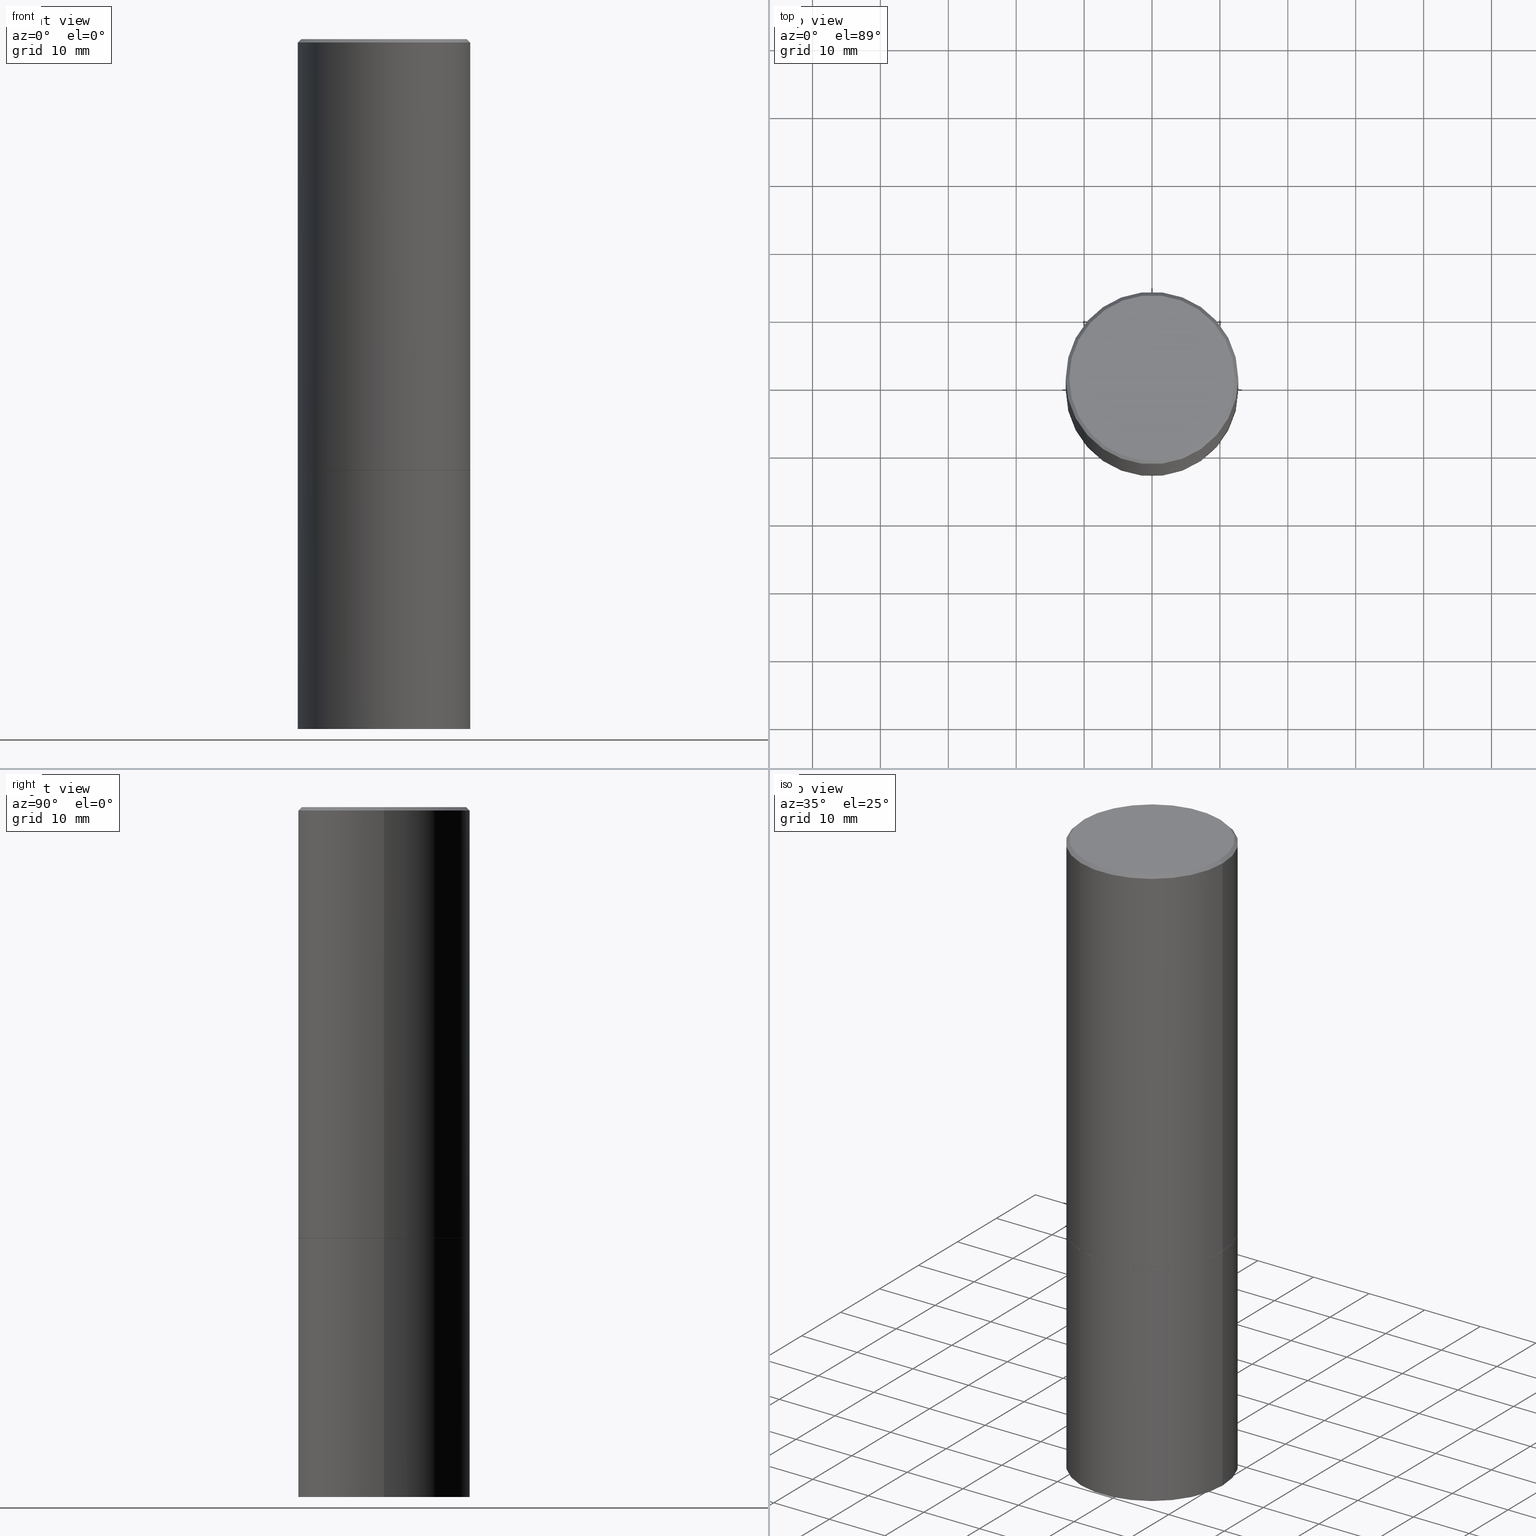
[diagram: canonical four-view strip — front | top / right | iso, engineering-drawing reading convention]
A machine part, canonical four-view strip (front | top / right | iso — engineering-drawing reading convention). The complete STEP part file that produces these views, byte-faithful:
ISO-10303-21;
HEADER;
FILE_DESCRIPTION (( 'STEP AP203' ),
    '1' );
FILE_NAME ('38523.STEP',
    '2024-02-27T23:28:09',
    ( '' ),
    ( '' ),
    'SwSTEP 2.0',
    'SolidWorks 2023',
    '' );
FILE_SCHEMA (( 'CONFIG_CONTROL_DESIGN' ));
ENDSEC;

DATA;
#1 = ORIENTED_EDGE ( 'NONE', *, *, #136, .F. ) ;
#2 = DIRECTION ( 'NONE',  ( 0.7071067811866199593, -2.468850131083015945E-15, 0.7071067811864750752 ) ) ;
#3 = VERTEX_POINT ( 'NONE', #291 ) ;
#4 = MANIFOLD_SOLID_BREP ( 'Body-Move/Copy2[2]', #10 ) ;
#5 = DIRECTION ( 'NONE',  ( -2.445468806185136877E-29, 3.491481338843145188E-15, 1.000000000000000000 ) ) ;
#6 = DIRECTION ( 'NONE',  ( -2.445468806185136597E-29, 3.491481338843145583E-15, 1.000000000000000000 ) ) ;
#7 = PLANE ( 'NONE',  #248 ) ;
#8 = UNCERTAINTY_MEASURE_WITH_UNIT (LENGTH_MEASURE( 1.000000000000000082E-05 ), #79, 'distance_accuracy_value', 'NONE');
#9 = EDGE_CURVE ( 'NONE', #335, #314, #13, .T. ) ;
#10 = CLOSED_SHELL ( 'NONE', ( #182, #326, #144, #77, #114, #61, #336, #315 ) ) ;
#11 = AXIS2_PLACEMENT_3D ( 'NONE', #63, #102, #156 ) ;
#12 = AXIS2_PLACEMENT_3D ( 'NONE', #40, #98, #277 ) ;
#13 = LINE ( 'NONE', #64, #80 ) ;
#14 = CARTESIAN_POINT ( 'NONE',  ( -3.131554243005659264E-46, 4.471029511141341874E-32, 1.280553747030123384E-17 ) ) ;
#15 = CARTESIAN_POINT ( 'NONE',  ( 6.113672015462842613E-29, -8.728703347107864943E-15, -2.500000000000000000 ) ) ;
#16 = DIRECTION ( 'NONE',  ( -2.445468806185136597E-29, 3.491481338843145583E-15, 1.000000000000000000 ) ) ;
#17 = CARTESIAN_POINT ( 'NONE',  ( 0.000000000000000000, 0.000000000000000000, 0.000000000000000000 ) ) ;
#18 = EDGE_CURVE ( 'NONE', #85, #51, #190, .T. ) ;
#19 = PERSON_AND_ORGANIZATION_ROLE ( 'classification_officer' ) ;
#20 = EDGE_CURVE ( 'NONE', #3, #163, #197, .T. ) ;
#21 = CONICAL_SURFACE ( 'NONE', #32, 0.4999999999999996114, 0.7853981633974471688 ) ;
#22 = EDGE_LOOP ( 'NONE', ( #229, #170, #237, #302 ) ) ;
#23 = CYLINDRICAL_SURFACE ( 'NONE', #356, 0.5000000000000000000 ) ;
#24 = EDGE_LOOP ( 'NONE', ( #262, #160, #287, #165 ) ) ;
#25 = ORIENTED_EDGE ( 'NONE', *, *, #152, .T. ) ;
#26 = APPROVAL ( #47, 'UNSPECIFIED' ) ;
#27 = ORIENTED_EDGE ( 'NONE', *, *, #286, .F. ) ;
#28 = CARTESIAN_POINT ( 'NONE',  ( 0.5000000000000000000, -1.221669320461215371E-14, -2.499000000000000110 ) ) ;
#29 = APPROVAL ( #238, 'UNSPECIFIED' ) ;
#30 = CARTESIAN_POINT ( 'NONE',  ( 6.113672015462842613E-29, -8.728703347107864943E-15, -2.500000000000000000 ) ) ;
#31 = CARTESIAN_POINT ( 'NONE',  ( -0.4999999999999996114, 3.421651712066267296E-15, -0.02000000000000009409 ) ) ;
#32 = AXIS2_PLACEMENT_3D ( 'NONE', #34, #317, #233 ) ;
#33 = AXIS2_PLACEMENT_3D ( 'NONE', #105, #56, #176 ) ;
#34 = CARTESIAN_POINT ( 'NONE',  ( 4.890937612370296805E-31, -6.982962677686323656E-17, -0.02000000000000009409 ) ) ;
#35 = COORDINATED_UNIVERSAL_TIME_OFFSET ( 5, 0, .BEHIND. ) ;
#36 = CARTESIAN_POINT ( 'NONE',  ( -0.4799999999999995381, 3.386736898677836041E-15, 1.280553747027767124E-17 ) ) ;
#37 = ORIENTED_EDGE ( 'NONE', *, *, #95, .T. ) ;
#38 = LINE ( 'NONE', #214, #59 ) ;
#39 = ORIENTED_EDGE ( 'NONE', *, *, #281, .F. ) ;
#40 = CARTESIAN_POINT ( 'NONE',  ( 4.890937612370296805E-31, -6.982962677686323656E-17, -0.02000000000000009409 ) ) ;
#41 = CIRCLE ( 'NONE', #273, 0.4999999999999996114 ) ;
#42 = DIRECTION ( 'NONE',  ( 1.000000000000000000, -6.982962677686266711E-15, 4.876176775795935793E-29 ) ) ;
#43 = PERSON_AND_ORGANIZATION_ROLE ( 'creator' ) ;
#44 = DIRECTION ( 'NONE',  ( 1.000000000000000000, -6.982962677686266711E-15, 0.000000000000000000 ) ) ;
#45 = EDGE_CURVE ( 'NONE', #139, #60, #90, .T. ) ;
#46 = AXIS2_PLACEMENT_3D ( 'NONE', #14, #242, #120 ) ;
#47 = APPROVAL_STATUS ( 'not_yet_approved' ) ;
#48 = CALENDAR_DATE ( 2024, 27, 2 ) ;
#49 = PLANE ( 'NONE',  #321 ) ;
#50 = CC_DESIGN_PERSON_AND_ORGANIZATION_ASSIGNMENT ( #297, #43, ( #330 ) ) ;
#51 = VERTEX_POINT ( 'NONE', #296 ) ;
#52 = CIRCLE ( 'NONE', #169, 0.5000000000000000000 ) ;
#53 = EDGE_LOOP ( 'NONE', ( #348, #178 ) ) ;
#54 = ADVANCED_FACE ( 'NONE', ( #243 ), #89, .T. ) ;
#55 = ORIENTED_EDGE ( 'NONE', *, *, #261, .T. ) ;
#56 = DIRECTION ( 'NONE',  ( 0.000000000000000000, 0.000000000000000000, 1.000000000000000000 ) ) ;
#57 = LINE ( 'NONE', #167, #288 ) ;
#58 = AXIS2_PLACEMENT_3D ( 'NONE', #110, #235, #341 ) ;
#59 = VECTOR ( 'NONE', #265, 39.37007874015748143 ) ;
#60 = VERTEX_POINT ( 'NONE', #28 ) ;
#61 = ADVANCED_FACE ( 'NONE', ( #148 ), #329, .T. ) ;
#62 = FACE_OUTER_BOUND ( 'NONE', #171, .T. ) ;
#63 = CARTESIAN_POINT ( 'NONE',  ( 0.000000000000000000, 0.000000000000000000, 0.000000000000000000 ) ) ;
#64 = CARTESIAN_POINT ( 'NONE',  ( -0.4989999999999999991, -5.183095095664965021E-15, -2.500000000000000000 ) ) ;
#65 = DIRECTION ( 'NONE',  ( 1.000000000000000000, -6.982962677686265133E-15, 0.000000000000000000 ) ) ;
#66 = CIRCLE ( 'NONE', #12, 0.4999999999999996114 ) ;
#67 = ORIENTED_EDGE ( 'NONE', *, *, #152, .F. ) ;
#68 = CARTESIAN_POINT ( 'NONE',  ( 0.4799999999999995381, -3.396558832296479338E-15, 1.280553747032483033E-17 ) ) ;
#69 = CARTESIAN_POINT ( 'NONE',  ( 3.351822085289404392E-15, 0.4799999999999995381, -1.669508273909557670E-15 ) ) ;
#70 = CALENDAR_DATE ( 2024, 27, 2 ) ;
#71 = CIRCLE ( 'NONE', #254, 0.5000000000000000000 ) ;
#72 = PERSON_AND_ORGANIZATION ( #166, #75 ) ;
#73 = DIRECTION ( 'NONE',  ( 1.000000000000000000, -6.982962677686265922E-15, 4.876176775795935793E-29 ) ) ;
#74 = VECTOR ( 'NONE', #5, 39.37007874015748143 ) ;
#75 = ORGANIZATION ( 'UNSPECIFIED', 'UNSPECIFIED', '' ) ;
#76 = SHAPE_DEFINITION_REPRESENTATION ( #192, #250 ) ;
#77 = ADVANCED_FACE ( 'NONE', ( #62 ), #21, .T. ) ;
#78 = CARTESIAN_POINT ( 'NONE',  ( -0.4989999999999999991, -5.177796641316743408E-15, -2.500000000000000000 ) ) ;
#79 =( CONVERSION_BASED_UNIT ( 'INCH', #332 ) LENGTH_UNIT ( ) NAMED_UNIT ( #200 ) );
#80 = VECTOR ( 'NONE', #202, 39.37007874015748143 ) ;
#81 = CC_DESIGN_APPROVAL ( #358, ( #330 ) ) ;
#82 = CC_DESIGN_PERSON_AND_ORGANIZATION_ASSIGNMENT ( #300, #179, ( #251 ) ) ;
#83 = CARTESIAN_POINT ( 'NONE',  ( -3.131554243005659264E-46, 4.471029511141341874E-32, 1.280553747030123384E-17 ) ) ;
#84 = VERTEX_POINT ( 'NONE', #68 ) ;
#85 = VERTEX_POINT ( 'NONE', #145 ) ;
#86 = ADVANCED_FACE ( 'NONE', ( #351 ), #7, .T. ) ;
#87 = ORIENTED_EDGE ( 'NONE', *, *, #107, .F. ) ;
#88 =( NAMED_UNIT ( * ) PLANE_ANGLE_UNIT ( ) SI_UNIT ( $, .RADIAN. ) );
#89 = CYLINDRICAL_SURFACE ( 'NONE', #124, 0.5000000000000000000 ) ;
#90 = LINE ( 'NONE', #211, #271 ) ;
#91 = FACE_OUTER_BOUND ( 'NONE', #109, .T. ) ;
#92 = DIRECTION ( 'NONE',  ( -1.000000000000000000, 6.982962677686265922E-15, -4.876176775795935793E-29 ) ) ;
#93 = LINE ( 'NONE', #270, #151 ) ;
#94 = LOCAL_TIME ( 18, 28, 9.000000000000000000, #35 ) ;
#95 = EDGE_CURVE ( 'NONE', #85, #163, #266, .T. ) ;
#96 = ORIENTED_EDGE ( 'NONE', *, *, #121, .T. ) ;
#97 = CARTESIAN_POINT ( 'NONE',  ( 0.5000000000000000000, -3.491481338843133355E-15, 2.438088387897967896E-29 ) ) ;
#98 = DIRECTION ( 'NONE',  ( -2.445468806185136597E-29, 3.491481338843145583E-15, 1.000000000000000000 ) ) ;
#99 = PERSON_AND_ORGANIZATION ( #166, #75 ) ;
#100 = CC_DESIGN_DATE_AND_TIME_ASSIGNMENT ( #234, #340, ( #330 ) ) ;
#101 = CYLINDRICAL_SURFACE ( 'NONE', #11, 0.4999999999999997780 ) ;
#102 = DIRECTION ( 'NONE',  ( -2.445468806185136597E-29, 3.491481338843145583E-15, 1.000000000000000000 ) ) ;
#103 = FACE_OUTER_BOUND ( 'NONE', #272, .T. ) ;
#104 = AXIS2_PLACEMENT_3D ( 'NONE', #15, #245, #352 ) ;
#105 = CARTESIAN_POINT ( 'NONE',  ( 0.000000000000000000, 0.000000000000000000, 0.000000000000000000 ) ) ;
#106 = ORIENTED_EDGE ( 'NONE', *, *, #228, .F. ) ;
#107 = EDGE_CURVE ( 'NONE', #51, #3, #205, .T. ) ;
#108 = ORIENTED_EDGE ( 'NONE', *, *, #20, .T. ) ;
#109 = EDGE_LOOP ( 'NONE', ( #137, #289, #119, #230 ) ) ;
#110 = CARTESIAN_POINT ( 'NONE',  ( 6.113672015462842613E-29, -8.728703347107864943E-15, -2.500000000000000000 ) ) ;
#111 = DIRECTION ( 'NONE',  ( 1.000000000000000000, -6.982962677686269077E-15, 0.000000000000000000 ) ) ;
#112 = DIRECTION ( 'NONE',  ( -2.445468806185136597E-29, 3.491481338843145583E-15, 1.000000000000000000 ) ) ;
#113 = DIRECTION ( 'NONE',  ( -2.445468806185136597E-29, 3.491481338843145583E-15, 1.000000000000000000 ) ) ;
#114 = ADVANCED_FACE ( 'NONE', ( #181 ), #188, .T. ) ;
#115 = APPLICATION_CONTEXT ( 'configuration controlled 3d designs of mechanical parts and assemblies' ) ;
#116 = CARTESIAN_POINT ( 'NONE',  ( -0.5000000000000000000, 3.552713678800500929E-15, -2.459467545127452891E-29 ) ) ;
#117 = DIRECTION ( 'NONE',  ( -2.445468806185136597E-29, 3.491481338843145583E-15, 1.000000000000000000 ) ) ;
#118 = LOCAL_TIME ( 18, 28, 9.000000000000000000, #325 ) ;
#119 = ORIENTED_EDGE ( 'NONE', *, *, #343, .F. ) ;
#120 = DIRECTION ( 'NONE',  ( 1.000000000000000000, -6.982962677686266711E-15, 4.876036955247133888E-29 ) ) ;
#121 = EDGE_CURVE ( 'NONE', #255, #259, #153, .T. ) ;
#122 = PERSON_AND_ORGANIZATION ( #166, #75 ) ;
#123 =( LENGTH_UNIT ( ) NAMED_UNIT ( * ) SI_UNIT ( $, .METRE. ) );
#124 = AXIS2_PLACEMENT_3D ( 'NONE', #318, #112, #339 ) ;
#125 = MANIFOLD_SOLID_BREP ( 'Body-Move/Copy2[1]', #309 ) ;
#126 = CIRCLE ( 'NONE', #263, 0.5000000000000000000 ) ;
#127 = DATE_AND_TIME ( #159, #347 ) ;
#128 = DATE_AND_TIME ( #186, #284 ) ;
#129 = CARTESIAN_POINT ( 'NONE',  ( 6.111226546656657010E-29, -8.725211865769021935E-15, -2.499000000000000110 ) ) ;
#130 = EDGE_LOOP ( 'NONE', ( #362, #313 ) ) ;
#131 = DIRECTION ( 'NONE',  ( -2.445468806185136597E-29, 3.491481338843145583E-15, 1.000000000000000000 ) ) ;
#132 = EDGE_LOOP ( 'NONE', ( #87, #55, #37, #322 ) ) ;
#133 = AXIS2_PLACEMENT_3D ( 'NONE', #30, #324, #264 ) ;
#134 = SECURITY_CLASSIFICATION ( '', '', #223 ) ;
#135 = EDGE_LOOP ( 'NONE', ( #39, #299, #199, #283 ) ) ;
#136 = EDGE_CURVE ( 'NONE', #335, #139, #338, .T. ) ;
#137 = ORIENTED_EDGE ( 'NONE', *, *, #286, .T. ) ;
#138 = ORIENTED_EDGE ( 'NONE', *, *, #161, .F. ) ;
#139 = VERTEX_POINT ( 'NONE', #278 ) ;
#140 = AXIS2_PLACEMENT_3D ( 'NONE', #201, #319, #175 ) ;
#141 = CALENDAR_DATE ( 2024, 27, 2 ) ;
#142 = DIRECTION ( 'NONE',  ( -2.445468806185136597E-29, 3.491481338843145583E-15, 1.000000000000000000 ) ) ;
#143 = DIRECTION ( 'NONE',  ( -2.445468806185136877E-29, 3.491481338843145188E-15, 1.000000000000000000 ) ) ;
#144 = ADVANCED_FACE ( 'NONE', ( #355 ), #295, .T. ) ;
#145 = CARTESIAN_POINT ( 'NONE',  ( 0.5000000000000000000, -1.745740669421571411E-14, -4.000000000000000000 ) ) ;
#146 = APPROVAL_DATE_TIME ( #184, #358 ) ;
#147 = CARTESIAN_POINT ( 'NONE',  ( 6.111226546656657010E-29, -8.725211865769021935E-15, -2.499000000000000110 ) ) ;
#148 = FACE_OUTER_BOUND ( 'NONE', #22, .T. ) ;
#149 = DIRECTION ( 'NONE',  ( 1.000000000000000000, -6.982962677686266711E-15, 0.000000000000000000 ) ) ;
#150 = ORIENTED_EDGE ( 'NONE', *, *, #210, .F. ) ;
#151 = VECTOR ( 'NONE', #180, 39.37007874015748143 ) ;
#152 = EDGE_CURVE ( 'NONE', #60, #366, #57, .T. ) ;
#153 = LINE ( 'NONE', #155, #304 ) ;
#154 = DIRECTION ( 'NONE',  ( 1.000000000000000000, -6.982962677686266711E-15, 4.876036955247133888E-29 ) ) ;
#155 = CARTESIAN_POINT ( 'NONE',  ( -0.4999999999999996114, 3.421651712066267296E-15, -0.02000000000000009409 ) ) ;
#156 = DIRECTION ( 'NONE',  ( 1.000000000000000000, -6.982962677686266711E-15, 4.876176775795935793E-29 ) ) ;
#157 = AXIS2_PLACEMENT_3D ( 'NONE', #69, #183, #303 ) ;
#158 = ADVANCED_FACE ( 'NONE', ( #285 ), #23, .T. ) ;
#159 = CALENDAR_DATE ( 2024, 27, 2 ) ;
#160 = ORIENTED_EDGE ( 'NONE', *, *, #107, .T. ) ;
#161 = EDGE_CURVE ( 'NONE', #255, #84, #226, .T. ) ;
#162 = VECTOR ( 'NONE', #240, 39.37007874015748143 ) ;
#163 = VERTEX_POINT ( 'NONE', #275 ) ;
#164 = ORIENTED_EDGE ( 'NONE', *, *, #220, .T. ) ;
#165 = ORIENTED_EDGE ( 'NONE', *, *, #95, .F. ) ;
#166 = PERSON ( 'UNSPECIFIED', 'UNSPECIFIED', 'UNSPECIFIED', ('UNSPECIFIED'), ('UNSPECIFIED'), ('UNSPECIFIED') ) ;
#167 = CARTESIAN_POINT ( 'NONE',  ( 0.4999999999999997780, -3.491481338843131778E-15, 2.438088387897966775E-29 ) ) ;
#168 = AXIS2_PLACEMENT_3D ( 'NONE', #17, #249, #42 ) ;
#169 = AXIS2_PLACEMENT_3D ( 'NONE', #147, #16, #65 ) ;
#170 = ORIENTED_EDGE ( 'NONE', *, *, #136, .T. ) ;
#171 = EDGE_LOOP ( 'NONE', ( #269, #138, #96, #196 ) ) ;
#172 = CARTESIAN_POINT ( 'NONE',  ( 3.491481338843230780E-15, 0.4999999999999860667, -4.000000000000001776 ) ) ;
#173 = MECHANICAL_CONTEXT ( 'NONE', #328, 'mechanical' ) ;
#174 = DIRECTION ( 'NONE',  ( 1.000000000000000000, -6.982962677686266711E-15, 0.000000000000000000 ) ) ;
#175 = DIRECTION ( 'NONE',  ( 1.000000000000000000, -6.982962677686266711E-15, 0.000000000000000000 ) ) ;
#176 = DIRECTION ( 'NONE',  ( 1.000000000000000000, 0.000000000000000000, 0.000000000000000000 ) ) ;
#177 = AXIS2_PLACEMENT_3D ( 'NONE', #83, #113, #154 ) ;
#178 = ORIENTED_EDGE ( 'NONE', *, *, #261, .F. ) ;
#179 = PERSON_AND_ORGANIZATION_ROLE ( 'design_owner' ) ;
#180 = DIRECTION ( 'NONE',  ( 0.7071067811865466846, -7.319954787623252890E-15, -0.7071067811865483499 ) ) ;
#181 = FACE_OUTER_BOUND ( 'NONE', #260, .T. ) ;
#182 = ADVANCED_FACE ( 'NONE', ( #91 ), #194, .T. ) ;
#183 = DIRECTION ( 'NONE',  ( 2.438088387897960049E-29, -3.491481338843145188E-15, -1.000000000000000000 ) ) ;
#184 = DATE_AND_TIME ( #70, #118 ) ;
#185 = CC_DESIGN_APPROVAL ( #29, ( #331 ) ) ;
#186 = CALENDAR_DATE ( 2024, 27, 2 ) ;
#187 = APPROVAL_ROLE ( '' ) ;
#188 = CYLINDRICAL_SURFACE ( 'NONE', #168, 0.4999999999999997780 ) ;
#189 = DIRECTION ( 'NONE',  ( -2.445468806185136597E-29, 3.491481338843145583E-15, 1.000000000000000000 ) ) ;
#190 = CIRCLE ( 'NONE', #140, 0.5000000000000000000 ) ;
#191 = APPROVAL_PERSON_ORGANIZATION ( #72, #26, #187 ) ;
#192 = PRODUCT_DEFINITION_SHAPE ( 'NONE', 'NONE',  #330 ) ;
#193 = EDGE_CURVE ( 'NONE', #84, #366, #93, .T. ) ;
#194 = CONICAL_SURFACE ( 'NONE', #198, 0.4989999999999999991, 0.7853981633975507526 ) ;
#195 = DIRECTION ( 'NONE',  ( -1.000000000000000000, 6.982962677686266711E-15, 0.000000000000000000 ) ) ;
#196 = ORIENTED_EDGE ( 'NONE', *, *, #210, .T. ) ;
#197 = CIRCLE ( 'NONE', #58, 0.5000000000000000000 ) ;
#198 = AXIS2_PLACEMENT_3D ( 'NONE', #236, #239, #44 ) ;
#199 = ORIENTED_EDGE ( 'NONE', *, *, #228, .T. ) ;
#200 = DIMENSIONAL_EXPONENTS ( 1.000000000000000000, 0.000000000000000000, 0.000000000000000000, 0.000000000000000000, 0.000000000000000000, 0.000000000000000000, 0.000000000000000000 ) ;
#201 = CARTESIAN_POINT ( 'NONE',  ( 9.781875224740546387E-29, -1.396592535537258233E-14, -4.000000000000000000 ) ) ;
#202 = DIRECTION ( 'NONE',  ( -0.7071067811866199593, 7.493145998870616062E-15, 0.7071067811864750752 ) ) ;
#203 = APPLICATION_PROTOCOL_DEFINITION ( 'international standard', 'config_control_design', 1994, #115 ) ;
#204 = FACE_OUTER_BOUND ( 'NONE', #359, .T. ) ;
#205 = LINE ( 'NONE', #116, #162 ) ;
#206 = COORDINATED_UNIVERSAL_TIME_OFFSET ( 5, 0, .BEHIND. ) ;
#207 = APPROVAL_PERSON_ORGANIZATION ( #267, #29, #345 ) ;
#208 = DIRECTION ( 'NONE',  ( -2.445468806185136597E-29, 3.491481338843145583E-15, 1.000000000000000000 ) ) ;
#209 = DESIGN_CONTEXT ( 'detailed design', #115, 'design' ) ;
#210 = EDGE_CURVE ( 'NONE', #259, #366, #66, .T. ) ;
#211 = CARTESIAN_POINT ( 'NONE',  ( 0.4989999999999999991, -1.221320172327331228E-14, -2.500000000000000000 ) ) ;
#212 = FACE_OUTER_BOUND ( 'NONE', #130, .T. ) ;
#213 = APPROVAL_STATUS ( 'not_yet_approved' ) ;
#214 = CARTESIAN_POINT ( 'NONE',  ( -0.4999999999999997780, 3.552713678800499352E-15, -2.459467545127452050E-29 ) ) ;
#215 = COORDINATED_UNIVERSAL_TIME_OFFSET ( 5, 0, .BEHIND. ) ;
#216 = CARTESIAN_POINT ( 'NONE',  ( -0.5000000000000000000, -8.448070674724393209E-16, -2.499000000000000110 ) ) ;
#217 = AXIS2_PLACEMENT_3D ( 'NONE', #247, #349, #301 ) ;
#218 = APPROVAL_DATE_TIME ( #357, #29 ) ;
#219 = CARTESIAN_POINT ( 'NONE',  ( 6.113672015462842613E-29, -8.728703347107864943E-15, -2.500000000000000000 ) ) ;
#220 = EDGE_CURVE ( 'NONE', #314, #60, #52, .T. ) ;
#221 = CC_DESIGN_SECURITY_CLASSIFICATION ( #134, ( #331 ) ) ;
#222 = CIRCLE ( 'NONE', #46, 0.4799999999999995381 ) ;
#223 = SECURITY_CLASSIFICATION_LEVEL ( 'unclassified' ) ;
#224 = CC_DESIGN_DATE_AND_TIME_ASSIGNMENT ( #127, #353, ( #134 ) ) ;
#225 = ORIENTED_EDGE ( 'NONE', *, *, #306, .T. ) ;
#226 = CIRCLE ( 'NONE', #177, 0.4799999999999995381 ) ;
#227 = ORIENTED_EDGE ( 'NONE', *, *, #252, .F. ) ;
#228 = EDGE_CURVE ( 'NONE', #366, #259, #41, .T. ) ;
#229 = ORIENTED_EDGE ( 'NONE', *, *, #9, .F. ) ;
#230 = ORIENTED_EDGE ( 'NONE', *, *, #45, .F. ) ;
#231 =( GEOMETRIC_REPRESENTATION_CONTEXT ( 3 ) GLOBAL_UNCERTAINTY_ASSIGNED_CONTEXT ( ( #8 ) ) GLOBAL_UNIT_ASSIGNED_CONTEXT ( ( #79, #88, #292 ) ) REPRESENTATION_CONTEXT ( 'NONE', 'WORKASPACE' ) );
#232 = ADVANCED_FACE ( 'NONE', ( #204 ), #298, .F. ) ;
#233 = DIRECTION ( 'NONE',  ( -1.000000000000000000, 6.982962677686266711E-15, 0.000000000000000000 ) ) ;
#234 = DATE_AND_TIME ( #141, #94 ) ;
#235 = DIRECTION ( 'NONE',  ( -2.445468806185136597E-29, 3.491481338843145583E-15, 1.000000000000000000 ) ) ;
#236 = CARTESIAN_POINT ( 'NONE',  ( 6.113672015462842613E-29, -8.728703347107864943E-15, -2.500000000000000000 ) ) ;
#237 = ORIENTED_EDGE ( 'NONE', *, *, #45, .T. ) ;
#238 = APPROVAL_STATUS ( 'not_yet_approved' ) ;
#239 = DIRECTION ( 'NONE',  ( -2.445468806185136597E-29, 3.491481338843145583E-15, 1.000000000000000000 ) ) ;
#240 = DIRECTION ( 'NONE',  ( -2.445468806185136877E-29, 3.491481338843145188E-15, 1.000000000000000000 ) ) ;
#241 = CC_DESIGN_APPROVAL ( #26, ( #134 ) ) ;
#242 = DIRECTION ( 'NONE',  ( -2.445468806185136597E-29, 3.491481338843145583E-15, 1.000000000000000000 ) ) ;
#243 = FACE_OUTER_BOUND ( 'NONE', #132, .T. ) ;
#244 = CARTESIAN_POINT ( 'NONE',  ( 6.113672015462842613E-29, -8.728703347107864943E-15, -2.500000000000000000 ) ) ;
#245 = DIRECTION ( 'NONE',  ( -2.445468806185136597E-29, 3.491481338843145583E-15, 1.000000000000000000 ) ) ;
#246 = COORDINATED_UNIVERSAL_TIME_OFFSET ( 5, 0, .BEHIND. ) ;
#247 = CARTESIAN_POINT ( 'NONE',  ( 3.491481338843194098E-15, 0.4999999999999912292, -2.500000000000001776 ) ) ;
#248 = AXIS2_PLACEMENT_3D ( 'NONE', #172, #293, #92 ) ;
#249 = DIRECTION ( 'NONE',  ( -2.445468806185136597E-29, 3.491481338843145583E-15, 1.000000000000000000 ) ) ;
#250 = ADVANCED_BREP_SHAPE_REPRESENTATION ( '38523', ( #125, #4, #33 ), #231 ) ;
#251 = PRODUCT ( '38523', '38523', '', ( #173 ) ) ;
#252 = EDGE_CURVE ( 'NONE', #314, #259, #38, .T. ) ;
#253 = CARTESIAN_POINT ( 'NONE',  ( 0.4999999999999996114, -3.500078625662626318E-15, -0.02000000000000009409 ) ) ;
#254 = AXIS2_PLACEMENT_3D ( 'NONE', #129, #189, #360 ) ;
#255 = VERTEX_POINT ( 'NONE', #36 ) ;
#256 = ORIENTED_EDGE ( 'NONE', *, *, #252, .T. ) ;
#257 = PRODUCT_RELATED_PRODUCT_CATEGORY ( 'detail', '', ( #251 ) ) ;
#258 = CARTESIAN_POINT ( 'NONE',  ( 0.000000000000000000, 0.000000000000000000, 0.000000000000000000 ) ) ;
#259 = VERTEX_POINT ( 'NONE', #31 ) ;
#260 = EDGE_LOOP ( 'NONE', ( #227, #164, #25, #150 ) ) ;
#261 = EDGE_CURVE ( 'NONE', #51, #85, #126, .T. ) ;
#262 = ORIENTED_EDGE ( 'NONE', *, *, #18, .T. ) ;
#263 = AXIS2_PLACEMENT_3D ( 'NONE', #268, #6, #149 ) ;
#264 = DIRECTION ( 'NONE',  ( 1.000000000000000000, -6.982962677686266711E-15, 0.000000000000000000 ) ) ;
#265 = DIRECTION ( 'NONE',  ( -2.445468806185136877E-29, 3.491481338843145188E-15, 1.000000000000000000 ) ) ;
#266 = LINE ( 'NONE', #97, #74 ) ;
#267 = PERSON_AND_ORGANIZATION ( #166, #75 ) ;
#268 = CARTESIAN_POINT ( 'NONE',  ( 9.781875224740546387E-29, -1.396592535537258233E-14, -4.000000000000000000 ) ) ;
#269 = ORIENTED_EDGE ( 'NONE', *, *, #193, .F. ) ;
#270 = CARTESIAN_POINT ( 'NONE',  ( 0.4999999999999996114, -3.500078625662626318E-15, -0.02000000000000009409 ) ) ;
#271 = VECTOR ( 'NONE', #2, 39.37007874015748143 ) ;
#272 = EDGE_LOOP ( 'NONE', ( #27, #1 ) ) ;
#273 = AXIS2_PLACEMENT_3D ( 'NONE', #346, #208, #323 ) ;
#274 = PERSON_AND_ORGANIZATION ( #166, #75 ) ;
#275 = CARTESIAN_POINT ( 'NONE',  ( 0.5000000000000000000, -1.222018468595099830E-14, -2.500000000000000000 ) ) ;
#276 = DIRECTION ( 'NONE',  ( -0.7071067811865466846, 2.468850131082247989E-15, -0.7071067811865483499 ) ) ;
#277 = DIRECTION ( 'NONE',  ( 1.000000000000000000, -6.982962677686266711E-15, 0.000000000000000000 ) ) ;
#278 = CARTESIAN_POINT ( 'NONE',  ( 0.4989999999999999991, -1.221320172327331228E-14, -2.500000000000000000 ) ) ;
#279 = APPROVAL_DATE_TIME ( #128, #26 ) ;
#280 = CIRCLE ( 'NONE', #312, 0.4989999999999999991 ) ;
#281 = EDGE_CURVE ( 'NONE', #84, #255, #222, .T. ) ;
#282 = DIRECTION ( 'NONE',  ( -2.438088387897960049E-29, 3.491481338843145188E-15, 1.000000000000000000 ) ) ;
#283 = ORIENTED_EDGE ( 'NONE', *, *, #121, .F. ) ;
#284 = LOCAL_TIME ( 18, 28, 9.000000000000000000, #215 ) ;
#285 = FACE_OUTER_BOUND ( 'NONE', #24, .T. ) ;
#286 = EDGE_CURVE ( 'NONE', #139, #335, #280, .T. ) ;
#287 = ORIENTED_EDGE ( 'NONE', *, *, #306, .F. ) ;
#288 = VECTOR ( 'NONE', #143, 39.37007874015748143 ) ;
#289 = ORIENTED_EDGE ( 'NONE', *, *, #9, .T. ) ;
#290 = CC_DESIGN_PERSON_AND_ORGANIZATION_ASSIGNMENT ( #308, #19, ( #134 ) ) ;
#291 = CARTESIAN_POINT ( 'NONE',  ( -0.5000000000000000000, -7.794600672439723496E-15, -2.500000000000000000 ) ) ;
#292 =( NAMED_UNIT ( * ) SI_UNIT ( $, .STERADIAN. ) SOLID_ANGLE_UNIT ( ) );
#293 = DIRECTION ( 'NONE',  ( 2.438088387897960049E-29, -3.491481338843145188E-15, -1.000000000000000000 ) ) ;
#294 = APPROVAL_ROLE ( '' ) ;
#295 = CONICAL_SURFACE ( 'NONE', #310, 0.4999999999999996114, 0.7853981633974471688 ) ;
#296 = CARTESIAN_POINT ( 'NONE',  ( -0.5000000000000000000, -7.794600672439723496E-15, -4.000000000000000000 ) ) ;
#297 = PERSON_AND_ORGANIZATION ( #166, #75 ) ;
#298 = PLANE ( 'NONE',  #217 ) ;
#299 = ORIENTED_EDGE ( 'NONE', *, *, #193, .T. ) ;
#300 = PERSON_AND_ORGANIZATION ( #166, #75 ) ;
#301 = DIRECTION ( 'NONE',  ( -1.000000000000000000, 6.982962677686265922E-15, -4.876176775795935793E-29 ) ) ;
#302 = ORIENTED_EDGE ( 'NONE', *, *, #220, .F. ) ;
#303 = DIRECTION ( 'NONE',  ( -1.000000000000000000, 6.982962677686265922E-15, -4.876176775795935793E-29 ) ) ;
#304 = VECTOR ( 'NONE', #276, 39.37007874015748143 ) ;
#305 = AXIS2_PLACEMENT_3D ( 'NONE', #244, #142, #111 ) ;
#306 = EDGE_CURVE ( 'NONE', #163, #3, #334, .T. ) ;
#307 = PERSON_AND_ORGANIZATION_ROLE ( 'design_supplier' ) ;
#308 = PERSON_AND_ORGANIZATION ( #166, #75 ) ;
#309 = CLOSED_SHELL ( 'NONE', ( #158, #86, #232, #54 ) ) ;
#310 = AXIS2_PLACEMENT_3D ( 'NONE', #361, #333, #195 ) ;
#311 = PERSON_AND_ORGANIZATION_ROLE ( 'creator' ) ;
#312 = AXIS2_PLACEMENT_3D ( 'NONE', #327, #117, #174 ) ;
#313 = ORIENTED_EDGE ( 'NONE', *, *, #281, .T. ) ;
#314 = VERTEX_POINT ( 'NONE', #216 ) ;
#315 = ADVANCED_FACE ( 'NONE', ( #212 ), #342, .F. ) ;
#316 = LOCAL_TIME ( 18, 28, 9.000000000000000000, #206 ) ;
#317 = DIRECTION ( 'NONE',  ( 2.445468806185136597E-29, -3.491481338843145583E-15, -1.000000000000000000 ) ) ;
#318 = CARTESIAN_POINT ( 'NONE',  ( 0.000000000000000000, 0.000000000000000000, 0.000000000000000000 ) ) ;
#319 = DIRECTION ( 'NONE',  ( -2.445468806185136597E-29, 3.491481338843145583E-15, 1.000000000000000000 ) ) ;
#320 = CC_DESIGN_PERSON_AND_ORGANIZATION_ASSIGNMENT ( #122, #311, ( #331 ) ) ;
#321 = AXIS2_PLACEMENT_3D ( 'NONE', #219, #282, #73 ) ;
#322 = ORIENTED_EDGE ( 'NONE', *, *, #20, .F. ) ;
#323 = DIRECTION ( 'NONE',  ( 1.000000000000000000, -6.982962677686266711E-15, 0.000000000000000000 ) ) ;
#324 = DIRECTION ( 'NONE',  ( -2.445468806185136597E-29, 3.491481338843145583E-15, 1.000000000000000000 ) ) ;
#325 = COORDINATED_UNIVERSAL_TIME_OFFSET ( 5, 0, .BEHIND. ) ;
#326 = ADVANCED_FACE ( 'NONE', ( #354 ), #101, .T. ) ;
#327 = CARTESIAN_POINT ( 'NONE',  ( 6.113672015462842613E-29, -8.728703347107864943E-15, -2.500000000000000000 ) ) ;
#328 = APPLICATION_CONTEXT ( 'configuration controlled 3d designs of mechanical parts and assemblies' ) ;
#329 = CONICAL_SURFACE ( 'NONE', #133, 0.4989999999999999991, 0.7853981633975507526 ) ;
#330 = PRODUCT_DEFINITION ( 'UNKNOWN', '', #331, #209 ) ;
#331 = PRODUCT_DEFINITION_FORMATION_WITH_SPECIFIED_SOURCE ( 'ANY', '', #251, .NOT_KNOWN. ) ;
#332 = LENGTH_MEASURE_WITH_UNIT ( LENGTH_MEASURE( 0.02539999999999999897 ), #123 );
#333 = DIRECTION ( 'NONE',  ( 2.445468806185136597E-29, -3.491481338843145583E-15, -1.000000000000000000 ) ) ;
#334 = CIRCLE ( 'NONE', #305, 0.5000000000000000000 ) ;
#335 = VERTEX_POINT ( 'NONE', #78 ) ;
#336 = ADVANCED_FACE ( 'NONE', ( #103 ), #49, .F. ) ;
#337 = EDGE_LOOP ( 'NONE', ( #344, #256, #106, #67 ) ) ;
#338 = CIRCLE ( 'NONE', #104, 0.4989999999999999991 ) ;
#339 = DIRECTION ( 'NONE',  ( 1.000000000000000000, -6.982962677686266711E-15, 4.876176775795935793E-29 ) ) ;
#340 = DATE_TIME_ROLE ( 'creation_date' ) ;
#341 = DIRECTION ( 'NONE',  ( 1.000000000000000000, -6.982962677686269077E-15, 0.000000000000000000 ) ) ;
#342 = PLANE ( 'NONE',  #157 ) ;
#343 = EDGE_CURVE ( 'NONE', #60, #314, #71, .T. ) ;
#344 = ORIENTED_EDGE ( 'NONE', *, *, #343, .T. ) ;
#345 = APPROVAL_ROLE ( '' ) ;
#346 = CARTESIAN_POINT ( 'NONE',  ( 4.890937612370296805E-31, -6.982962677686323656E-17, -0.02000000000000009409 ) ) ;
#347 = LOCAL_TIME ( 18, 28, 9.000000000000000000, #246 ) ;
#348 = ORIENTED_EDGE ( 'NONE', *, *, #18, .F. ) ;
#349 = DIRECTION ( 'NONE',  ( 2.438088387897960049E-29, -3.491481338843145188E-15, -1.000000000000000000 ) ) ;
#350 = CC_DESIGN_PERSON_AND_ORGANIZATION_ASSIGNMENT ( #99, #307, ( #331 ) ) ;
#351 = FACE_OUTER_BOUND ( 'NONE', #53, .T. ) ;
#352 = DIRECTION ( 'NONE',  ( 1.000000000000000000, -6.982962677686266711E-15, 0.000000000000000000 ) ) ;
#353 = DATE_TIME_ROLE ( 'classification_date' ) ;
#354 = FACE_OUTER_BOUND ( 'NONE', #337, .T. ) ;
#355 = FACE_OUTER_BOUND ( 'NONE', #135, .T. ) ;
#356 = AXIS2_PLACEMENT_3D ( 'NONE', #258, #131, #365 ) ;
#357 = DATE_AND_TIME ( #48, #316 ) ;
#358 = APPROVAL ( #213, 'UNSPECIFIED' ) ;
#359 = EDGE_LOOP ( 'NONE', ( #225, #108 ) ) ;
#360 = DIRECTION ( 'NONE',  ( 1.000000000000000000, -6.982962677686265133E-15, 0.000000000000000000 ) ) ;
#361 = CARTESIAN_POINT ( 'NONE',  ( 4.890937612370296805E-31, -6.982962677686323656E-17, -0.02000000000000009409 ) ) ;
#362 = ORIENTED_EDGE ( 'NONE', *, *, #161, .T. ) ;
#363 = APPLICATION_PROTOCOL_DEFINITION ( 'international standard', 'config_control_design', 1994, #328 ) ;
#364 = APPROVAL_PERSON_ORGANIZATION ( #274, #358, #294 ) ;
#365 = DIRECTION ( 'NONE',  ( 1.000000000000000000, -6.982962677686266711E-15, 4.876176775795935793E-29 ) ) ;
#366 = VERTEX_POINT ( 'NONE', #253 ) ;
ENDSEC;
END-ISO-10303-21;
